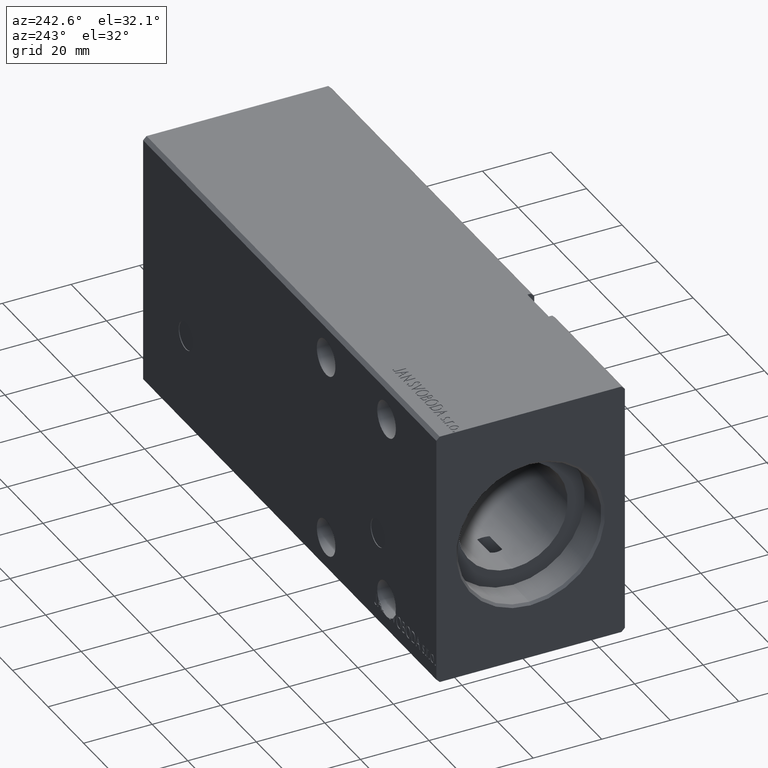
[diagram: clean part render]
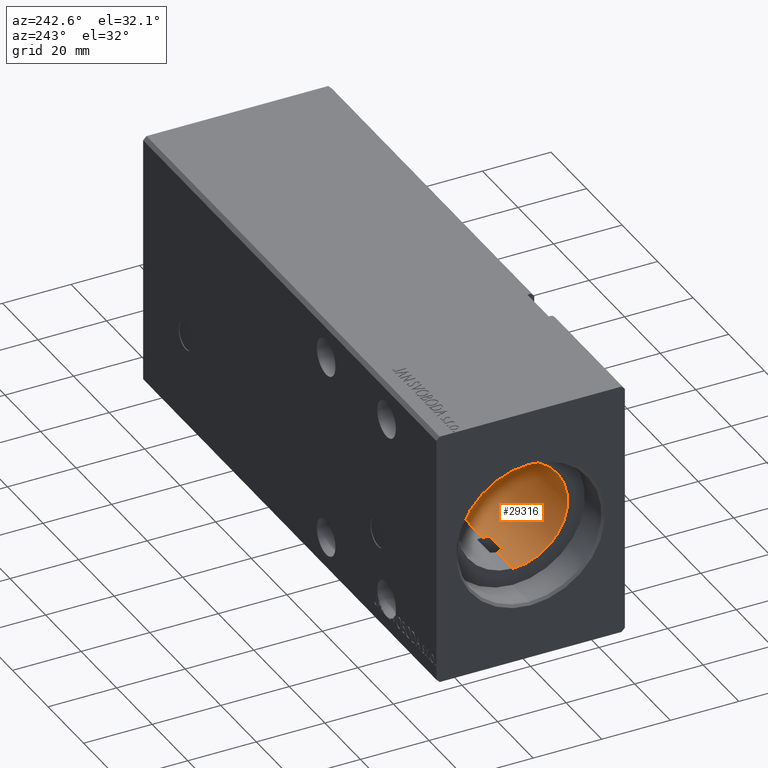
[diagram: same view with one face highlighted and labeled with its STEP entity id]
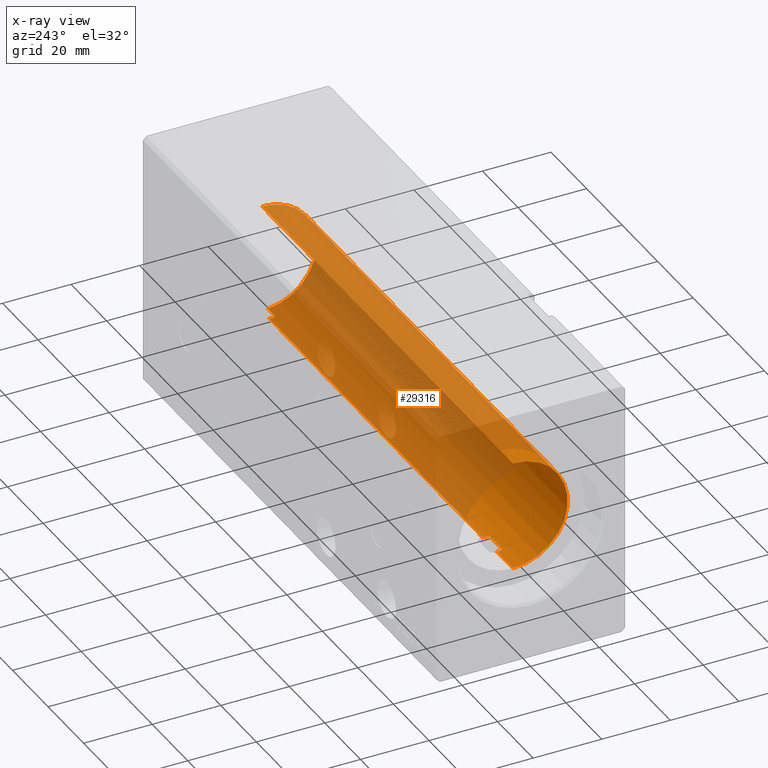
[diagram: x-ray of the same camera — body ghosted, the highlighted face saturated]
A machine part, auxiliary view. The second image highlights one B-rep face of the part: STEP entity #29316.
The next image is the same camera in x-ray: the body ghosted, the highlighted face saturated — about 80% of this face is hidden behind the body in this view.
In plain terms, the highlighted cylindrical surface (partial cylindrical patch) has radius 16 mm, axis along (-1, -0, -0).
Its self-contained STEP definition (entity closure, byte-faithful):
#1566 = VERTEX_POINT ( 'NONE', #11795 ) ;
#1861 = VERTEX_POINT ( 'NONE', #33139 ) ;
#1890 = VERTEX_POINT ( 'NONE', #38807 ) ;
#1947 = VERTEX_POINT ( 'NONE', #32930 ) ;
#2523 = CARTESIAN_POINT ( 'NONE',  ( 10.00000000000000888, 0.000000000000000000, 0.000000000000000000 ) ) ;
#2629 = EDGE_CURVE ( 'NONE', #1566, #1861, #8487, .T. ) ;
#2818 = DIRECTION ( 'NONE',  ( -1.000000000000000000, -0.000000000000000000, -0.000000000000000000 ) ) ;
#2957 = CARTESIAN_POINT ( 'NONE',  ( 151.1999999999999886, -1.786057109949259036, -15.89999999999998970 ) ) ;
#2960 = B_SPLINE_CURVE_WITH_KNOTS ( 'NONE', 3,
 ( #33249, #5508, #17849, #30207, #14804, #39528 ),
 .UNSPECIFIED., .F., .F.,
 ( 4, 2, 4 ),
 ( 0.000000000000000000, 0.0009228726212815540177, 0.001845745242563107602 ),
 .UNSPECIFIED. ) ;
#3379 = ORIENTED_EDGE ( 'NONE', *, *, #25692, .T. ) ;
#3630 = ORIENTED_EDGE ( 'NONE', *, *, #28181, .T. ) ;
#3906 = CARTESIAN_POINT ( 'NONE',  ( 26.82224888748791969, -1.219193417833760451, -15.95634149554536130 ) ) ;
#4320 = B_SPLINE_CURVE_WITH_KNOTS ( 'NONE', 3,
 ( #27948, #16169, #19603, #12544, #28540, #31190 ),
 .UNSPECIFIED., .F., .F.,
 ( 4, 2, 4 ),
 ( 0.000000000000000000, 0.0009228726212815562945, 0.001845745242563112589 ),
 .UNSPECIFIED. ) ;
#4322 = ORIENTED_EDGE ( 'NONE', *, *, #13077, .F. ) ;
#5102 = EDGE_LOOP ( 'NONE', ( #14065, #7904, #25135, #18235, #15812, #3630, #3379, #17919, #29703, #4322 ) ) ;
#5288 = LINE ( 'NONE', #14389, #38799 ) ;
#5457 = DIRECTION ( 'NONE',  ( 1.000000000000000000, 0.000000000000000000, 0.000000000000000000 ) ) ;
#5508 = CARTESIAN_POINT ( 'NONE',  ( 19.28229384797884194, -1.508314300261687002, -15.93119902641381991 ) ) ;
#5910 = VECTOR ( 'NONE', #2818, 1000.000000000000000 ) ;
#7097 = CARTESIAN_POINT ( 'NONE',  ( 151.1999999999999886, -1.786057109949259036, -15.89999999999998970 ) ) ;
#7655 = VERTEX_POINT ( 'NONE', #15297 ) ;
#7904 = ORIENTED_EDGE ( 'NONE', *, *, #20470, .T. ) ;
#8227 = EDGE_CURVE ( 'NONE', #9498, #7655, #12309, .T. ) ;
#8487 = LINE ( 'NONE', #33200, #34990 ) ;
#8891 = EDGE_CURVE ( 'NONE', #1566, #1947, #2960, .T. ) ;
#9005 = VERTEX_POINT ( 'NONE', #7097 ) ;
#9438 = DIRECTION ( 'NONE',  ( -1.000000000000000000, -0.000000000000000000, -0.000000000000000000 ) ) ;
#9498 = VERTEX_POINT ( 'NONE', #26348 ) ;
#9633 = LINE ( 'NONE', #31704, #18912 ) ;
#10287 = AXIS2_PLACEMENT_3D ( 'NONE', #18611, #29827, #23541 ) ;
#11551 = B_SPLINE_CURVE_WITH_KNOTS ( 'NONE', 3,
 ( #19480, #19279, #31649, #3906, #38118, #28615 ),
 .UNSPECIFIED., .F., .F.,
 ( 4, 2, 4 ),
 ( 0.001845745242563114324, 0.002767447188281244030, 0.003689149133999373303 ),
 .UNSPECIFIED. ) ;
#11795 = CARTESIAN_POINT ( 'NONE',  ( 19.42089396636538368, -1.786057109949259036, -15.89999999999998970 ) ) ;
#12199 = VECTOR ( 'NONE', #15299, 1000.000000000000000 ) ;
#12309 = LINE ( 'NONE', #37043, #5910 ) ;
#12544 = CARTESIAN_POINT ( 'NONE',  ( 147.0364338021151696, -0.6204082509210333551, -15.99078302721733102 ) ) ;
#13077 = EDGE_CURVE ( 'NONE', #21553, #9005, #18338, .T. ) ;
#14065 = ORIENTED_EDGE ( 'NONE', *, *, #18378, .T. ) ;
#14389 = CARTESIAN_POINT ( 'NONE',  ( 151.1999999999999886, 1.959434878635765131E-15, -16.00000000000000000 ) ) ;
#14624 = CYLINDRICAL_SURFACE ( 'NONE', #34492, 16.00000000000000000 ) ;
#14804 = CARTESIAN_POINT ( 'NONE',  ( 19.00000000000000355, -0.3077040434552402726, -16.00000000000000355 ) ) ;
#15297 = CARTESIAN_POINT ( 'NONE',  ( 10.00000000000000888, 0.000000000000000000, 16.00000000000000000 ) ) ;
#15299 = DIRECTION ( 'NONE',  ( 1.000000000000000000, 0.000000000000000000, 0.000000000000000000 ) ) ;
#15470 = DIRECTION ( 'NONE',  ( -1.000000000000000000, 0.000000000000000000, 0.000000000000000000 ) ) ;
#15812 = ORIENTED_EDGE ( 'NONE', *, *, #8891, .T. ) ;
#16169 = CARTESIAN_POINT ( 'NONE',  ( 147.2822938479787922, -1.508314300261685892, -15.93119902641380925 ) ) ;
#16805 = CARTESIAN_POINT ( 'NONE',  ( 10.00000000000000888, 1.959434878635765131E-15, -16.00000000000000000 ) ) ;
#16878 = CIRCLE ( 'NONE', #38892, 16.00000000000000000 ) ;
#17637 = DIRECTION ( 'NONE',  ( -1.000000000000000000, -0.000000000000000000, -0.000000000000000000 ) ) ;
#17849 = CARTESIAN_POINT ( 'NONE',  ( 19.17803745058905562, -1.219576022118254111, -15.95627408098855504 ) ) ;
#17919 = ORIENTED_EDGE ( 'NONE', *, *, #8227, .F. ) ;
#18235 = ORIENTED_EDGE ( 'NONE', *, *, #2629, .F. ) ;
#18240 = EDGE_CURVE ( 'NONE', #9005, #9498, #29691, .T. ) ;
#18338 = LINE ( 'NONE', #2957, #12199 ) ;
#18378 = EDGE_CURVE ( 'NONE', #21553, #1890, #4320, .T. ) ;
#18611 = CARTESIAN_POINT ( 'NONE',  ( 151.1999999999999886, 0.000000000000000000, 0.000000000000000000 ) ) ;
#18912 = VECTOR ( 'NONE', #9438, 1000.000000000000000 ) ;
#19279 = CARTESIAN_POINT ( 'NONE',  ( 27.00000000000000000, -0.3073137169939997304, -16.00000000000000000 ) ) ;
#19480 = CARTESIAN_POINT ( 'NONE',  ( 27.00000000000000000, -3.043259601029998868E-15, -16.00000000000000000 ) ) ;
#19603 = CARTESIAN_POINT ( 'NONE',  ( 147.1780374505890450, -1.219576022118245673, -15.95627408098855149 ) ) ;
#20470 = EDGE_CURVE ( 'NONE', #1890, #29407, #5288, .T. ) ;
#21553 = VERTEX_POINT ( 'NONE', #23924 ) ;
#23541 = DIRECTION ( 'NONE',  ( 0.000000000000000000, 0.000000000000000000, 1.000000000000000000 ) ) ;
#23734 = CARTESIAN_POINT ( 'NONE',  ( 151.1999999999999886, 0.000000000000000000, 0.000000000000000000 ) ) ;
#23924 = CARTESIAN_POINT ( 'NONE',  ( 147.4208939663653553, -1.786057109949259036, -15.89999999999998970 ) ) ;
#25135 = ORIENTED_EDGE ( 'NONE', *, *, #27865, .T. ) ;
#25692 = EDGE_CURVE ( 'NONE', #38687, #7655, #16878, .T. ) ;
#26348 = CARTESIAN_POINT ( 'NONE',  ( 151.1999999999999886, 0.000000000000000000, 16.00000000000000000 ) ) ;
#26988 = DIRECTION ( 'NONE',  ( -1.000000000000000000, -0.000000000000000000, -0.000000000000000000 ) ) ;
#27865 = EDGE_CURVE ( 'NONE', #29407, #1861, #11551, .T. ) ;
#27948 = CARTESIAN_POINT ( 'NONE',  ( 147.4208939663653553, -1.786057109949259036, -15.89999999999998970 ) ) ;
#28181 = EDGE_CURVE ( 'NONE', #1947, #38687, #9633, .T. ) ;
#28540 = CARTESIAN_POINT ( 'NONE',  ( 146.9999999999999716, -0.3077040434552365533, -16.00000000000000000 ) ) ;
#28615 = CARTESIAN_POINT ( 'NONE',  ( 26.57910603363461277, -1.786057109949259036, -15.89999999999998970 ) ) ;
#28782 = CARTESIAN_POINT ( 'NONE',  ( 27.00000000000000000, -3.043259601029998868E-15, -16.00000000000000000 ) ) ;
#29316 = ADVANCED_FACE ( 'NONE', ( #30026 ), #14624, .F. ) ;
#29407 = VERTEX_POINT ( 'NONE', #28782 ) ;
#29691 = CIRCLE ( 'NONE', #10287, 16.00000000000000000 ) ;
#29703 = ORIENTED_EDGE ( 'NONE', *, *, #18240, .F. ) ;
#29827 = DIRECTION ( 'NONE',  ( -1.000000000000000000, 0.000000000000000000, 0.000000000000000000 ) ) ;
#30026 = FACE_OUTER_BOUND ( 'NONE', #5102, .T. ) ;
#30207 = CARTESIAN_POINT ( 'NONE',  ( 19.03643380211522995, -0.6204082509210444574, -15.99078302721733102 ) ) ;
#31190 = CARTESIAN_POINT ( 'NONE',  ( 146.9999999999999716, 1.959437589784439602E-15, -16.00000000000000000 ) ) ;
#31649 = CARTESIAN_POINT ( 'NONE',  ( 26.96441505284474971, -0.6159808737045043836, -15.99099227927343314 ) ) ;
#31704 = CARTESIAN_POINT ( 'NONE',  ( 151.1999999999999886, 1.959434878635765131E-15, -16.00000000000000000 ) ) ;
#32930 = CARTESIAN_POINT ( 'NONE',  ( 19.00000000000000000, -3.533112898183174258E-15, -16.00000000000000000 ) ) ;
#33139 = CARTESIAN_POINT ( 'NONE',  ( 26.57910603363461277, -1.786057109949259036, -15.89999999999998970 ) ) ;
#33200 = CARTESIAN_POINT ( 'NONE',  ( 151.1999999999999886, -1.786057109949259036, -15.89999999999998970 ) ) ;
#33249 = CARTESIAN_POINT ( 'NONE',  ( 19.42089396636538368, -1.786057109949259036, -15.89999999999998970 ) ) ;
#34492 = AXIS2_PLACEMENT_3D ( 'NONE', #23734, #26988, #39341 ) ;
#34990 = VECTOR ( 'NONE', #5457, 1000.000000000000000 ) ;
#36555 = DIRECTION ( 'NONE',  ( 0.000000000000000000, 0.000000000000000000, 1.000000000000000000 ) ) ;
#37043 = CARTESIAN_POINT ( 'NONE',  ( 151.1999999999999886, 0.000000000000000000, 16.00000000000000000 ) ) ;
#38118 = CARTESIAN_POINT ( 'NONE',  ( 26.71754120084598938, -1.508644848340498168, -15.93116189573794195 ) ) ;
#38687 = VERTEX_POINT ( 'NONE', #16805 ) ;
#38799 = VECTOR ( 'NONE', #17637, 1000.000000000000000 ) ;
#38807 = CARTESIAN_POINT ( 'NONE',  ( 146.9999999999999716, 1.959437589784439602E-15, -16.00000000000000000 ) ) ;
#38892 = AXIS2_PLACEMENT_3D ( 'NONE', #2523, #15470, #36555 ) ;
#39341 = DIRECTION ( 'NONE',  ( 0.000000000000000000, 0.000000000000000000, 1.000000000000000000 ) ) ;
#39528 = CARTESIAN_POINT ( 'NONE',  ( 19.00000000000000000, -3.533112898183174258E-15, -16.00000000000000000 ) ) ;